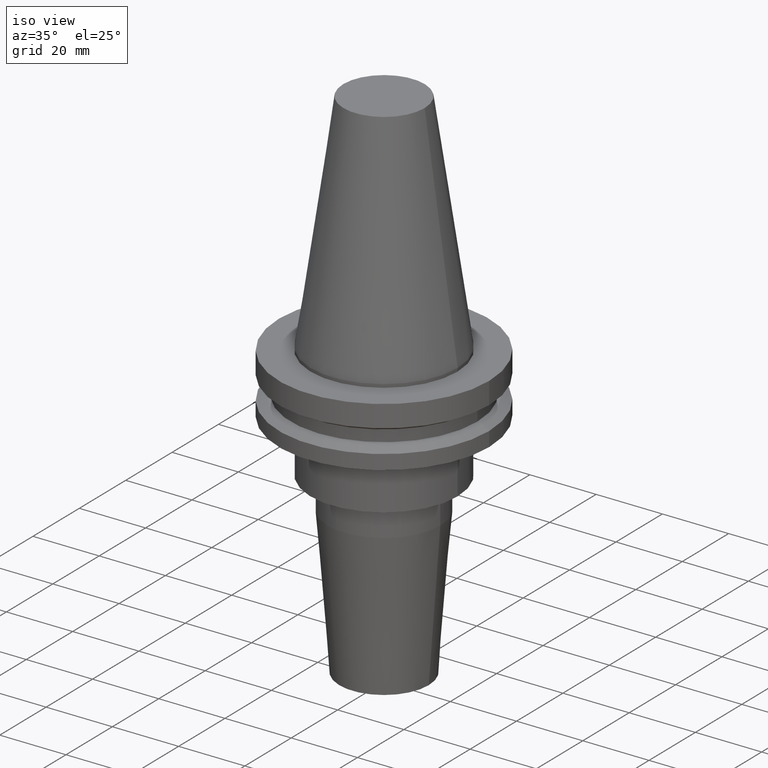
[diagram: clean part render]
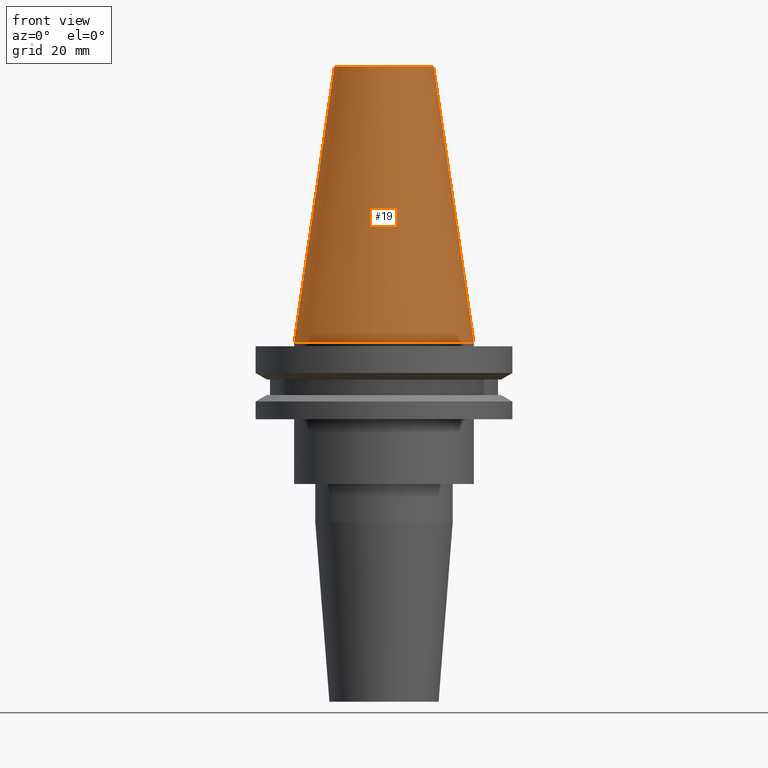
[diagram: tour spotlight — one face highlighted and labeled with its STEP entity id]
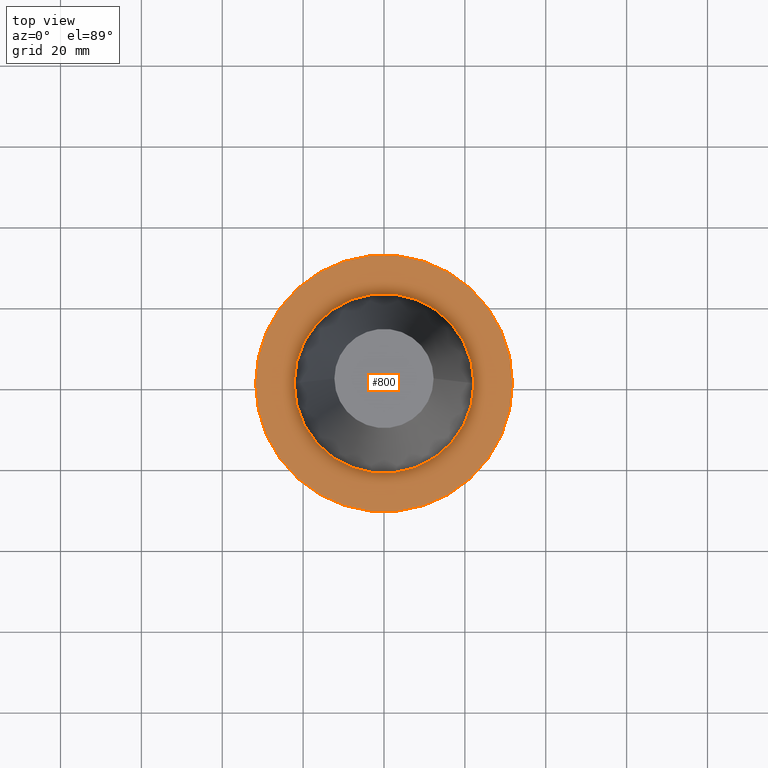
[diagram: tour spotlight — one face highlighted and labeled with its STEP entity id]
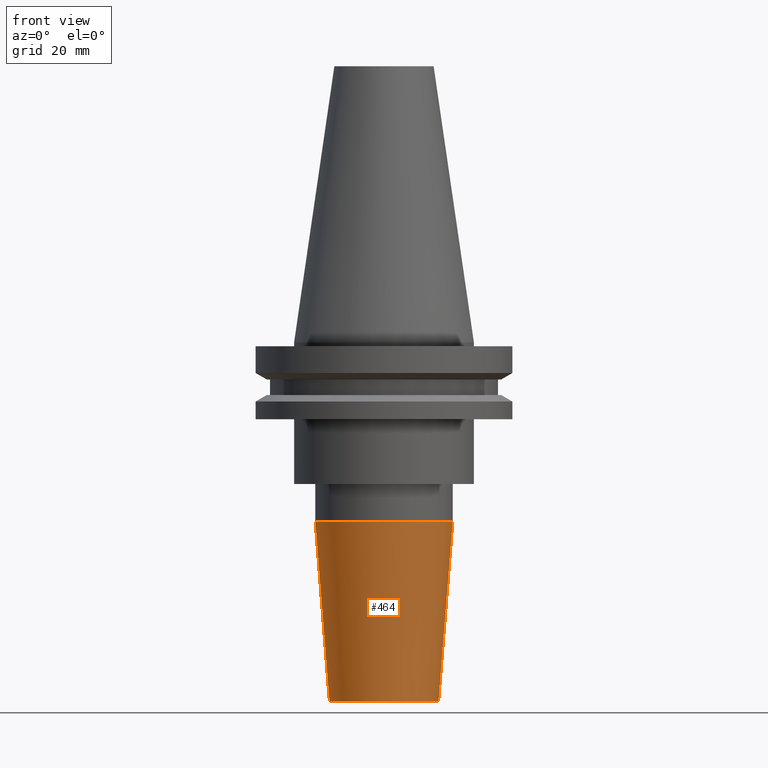
[diagram: tour spotlight — one face highlighted and labeled with its STEP entity id]
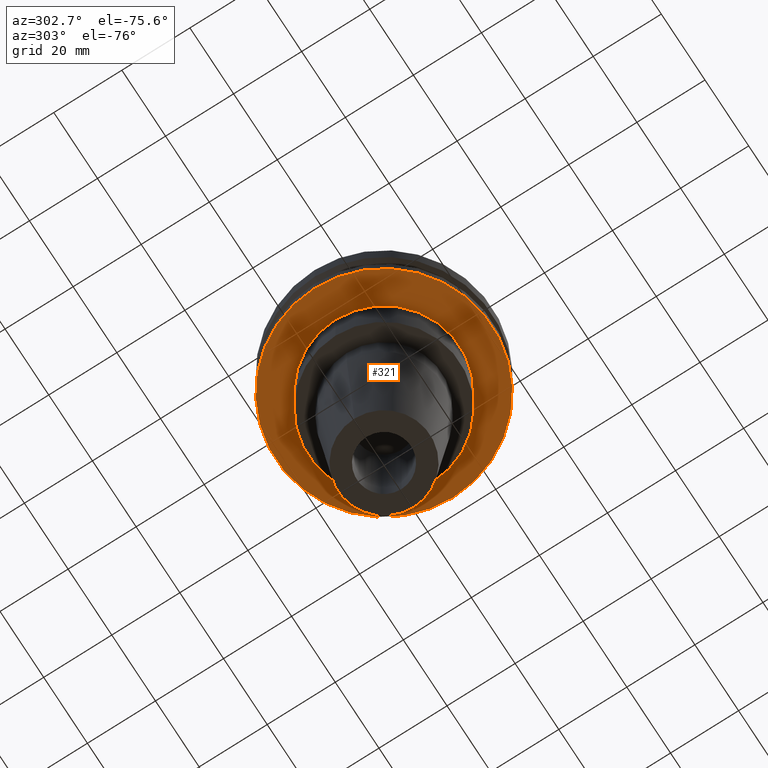
[diagram: tour spotlight — one face highlighted and labeled with its STEP entity id]
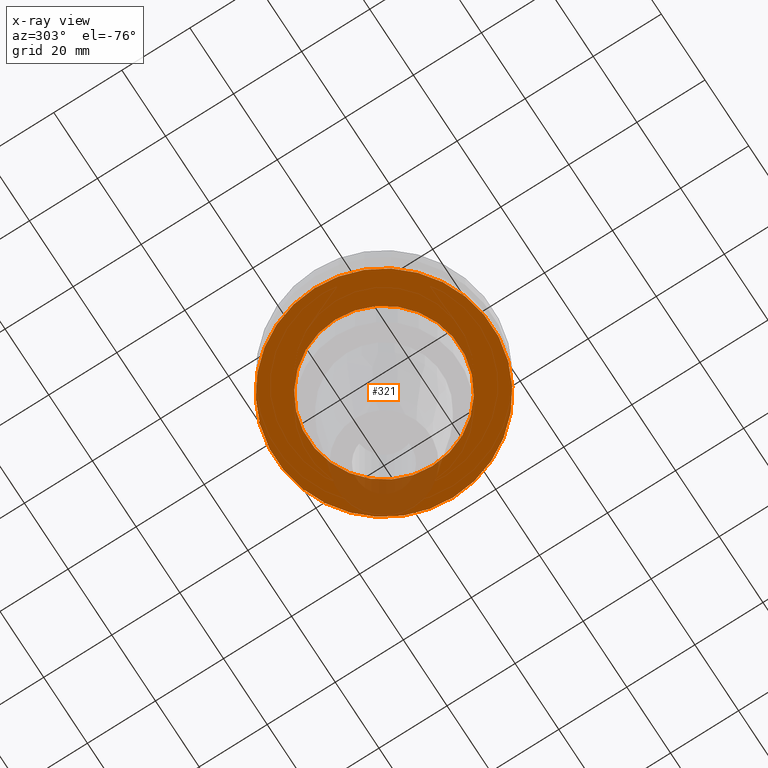
[diagram: x-ray of the same camera — body ghosted, this tour face saturated]
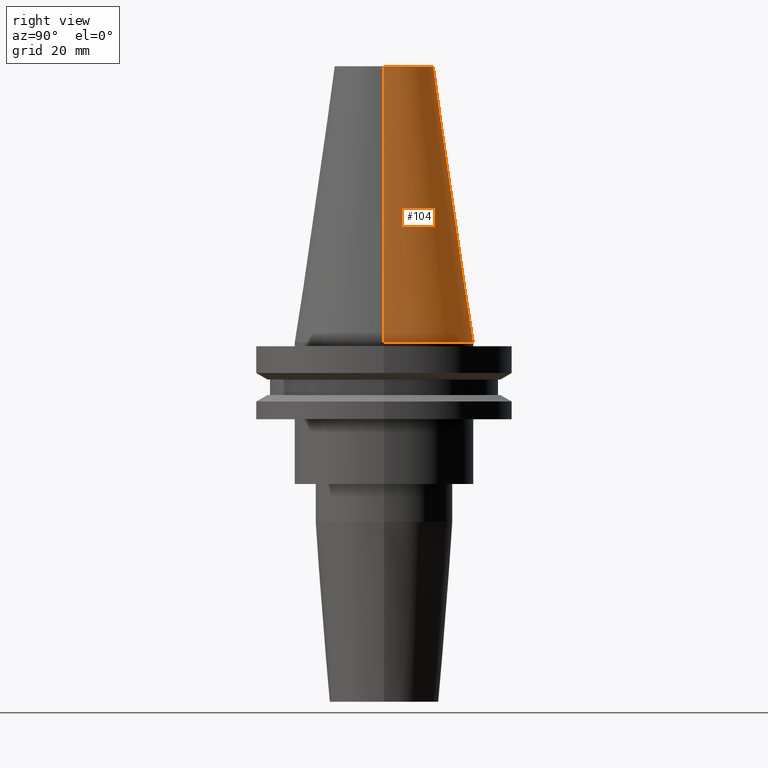
[diagram: tour spotlight — one face highlighted and labeled with its STEP entity id]
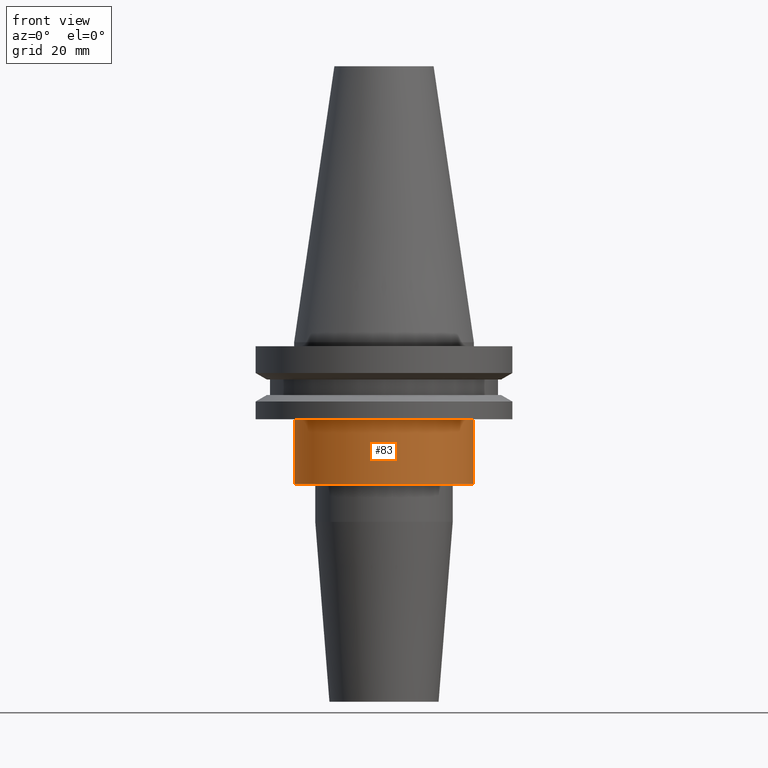
[diagram: tour spotlight — one face highlighted and labeled with its STEP entity id]
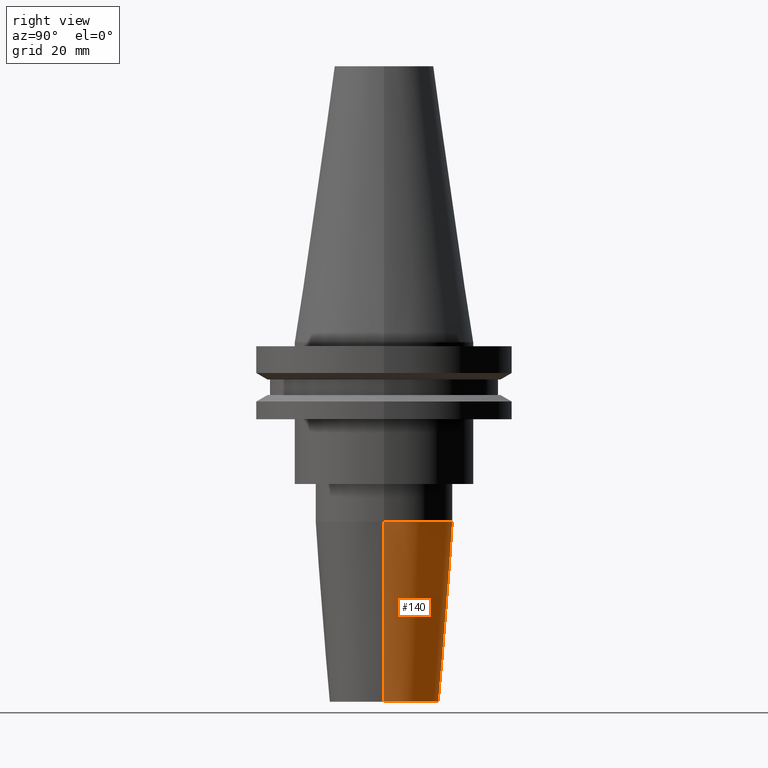
[diagram: tour spotlight — one face highlighted and labeled with its STEP entity id]
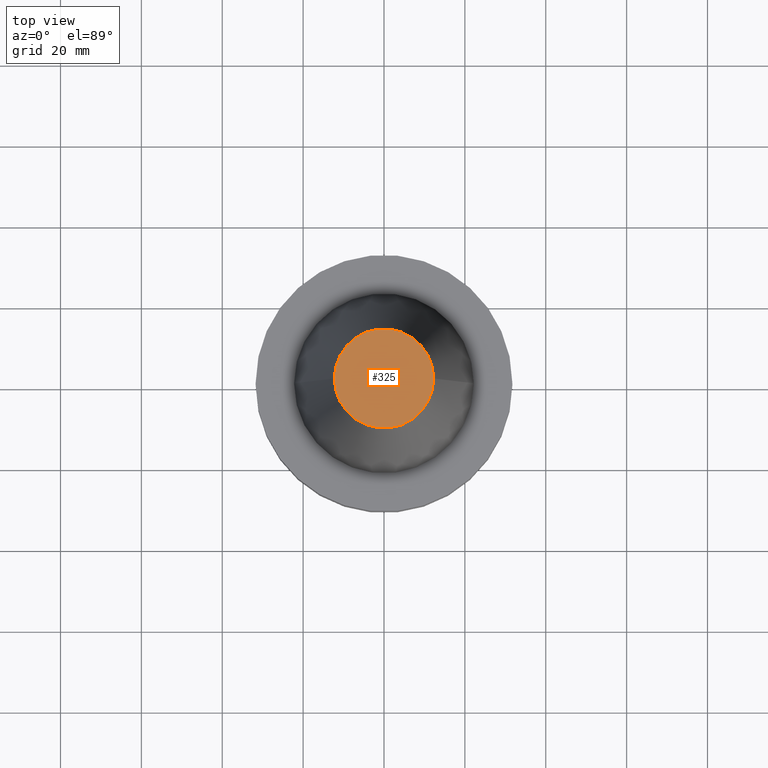
[diagram: tour spotlight — one face highlighted and labeled with its STEP entity id]
A machine part: a face-by-face anatomy tour. The part has 30 B-rep faces; the first image is the clean iso view, then the 8 largest visible faces are spotlighted one at a time (largest first), each with its STEP entity span.

Face 1 — front view, entity #19. In plain terms, the highlighted conical surface has half-angle 8.297 deg.
Definition (entity closure, byte-faithful):
#19 = ADVANCED_FACE ( 'NONE', ( #422 ), #143, .T. ) ;
#70 = CARTESIAN_POINT ( 'NONE',  ( 0.000000000000000000, 0.000000000000000000, 68.25000000000000000 ) ) ;
#78 = DIRECTION ( 'NONE',  ( -0.000000000000000000, -0.000000000000000000, 1.000000000000000000 ) ) ;
#101 = DIRECTION ( 'NONE',  ( 0.000000000000000000, 0.000000000000000000, -1.000000000000000000 ) ) ;
#118 = VERTEX_POINT ( 'NONE', #833 ) ;
#131 = CIRCLE ( 'NONE', #397, 12.27178102086201150 ) ;
#143 = CONICAL_SURFACE ( 'NONE', #299, 22.22500000000000142, 0.1448138465474119174 ) ;
#186 = CARTESIAN_POINT ( 'NONE',  ( 22.22500000000000142, 2.721777511104992849E-15, 0.000000000000000000 ) ) ;
#212 = EDGE_LOOP ( 'NONE', ( #544, #633, #372, #552 ) ) ;
#252 = DIRECTION ( 'NONE',  ( 0.1443082272672999711, 1.767266086135276757E-17, -0.9895327864921755756 ) ) ;
#264 = CARTESIAN_POINT ( 'NONE',  ( -22.22500000000000142, 0.000000000000000000, 0.000000000000000000 ) ) ;
#270 = DIRECTION ( 'NONE',  ( 1.000000000000000000, 0.000000000000000000, 0.000000000000000000 ) ) ;
#293 = CARTESIAN_POINT ( 'NONE',  ( 0.000000000000000000, 0.000000000000000000, 0.000000000000000000 ) ) ;
#299 = AXIS2_PLACEMENT_3D ( 'NONE', #435, #101, #764 ) ;
#302 = EDGE_CURVE ( 'NONE', #770, #118, #131, .T. ) ;
#357 = DIRECTION ( 'NONE',  ( 1.000000000000000000, 0.000000000000000000, 0.000000000000000000 ) ) ;
#372 = ORIENTED_EDGE ( 'NONE', *, *, #838, .T. ) ;
#382 = CARTESIAN_POINT ( 'NONE',  ( 22.22500000000000142, 2.721777511104992849E-15, 0.000000000000000000 ) ) ;
#396 = VECTOR ( 'NONE', #252, 999.9999999999998863 ) ;
#397 = AXIS2_PLACEMENT_3D ( 'NONE', #70, #78, #270 ) ;
#422 = FACE_OUTER_BOUND ( 'NONE', #212, .T. ) ;
#435 = CARTESIAN_POINT ( 'NONE',  ( 0.000000000000000000, 0.000000000000000000, 0.000000000000000000 ) ) ;
#438 = EDGE_CURVE ( 'NONE', #698, #677, #473, .T. ) ;
#473 = CIRCLE ( 'NONE', #514, 22.22500000000000142 ) ;
#514 = AXIS2_PLACEMENT_3D ( 'NONE', #293, #680, #357 ) ;
#544 = ORIENTED_EDGE ( 'NONE', *, *, #636, .F. ) ;
#552 = ORIENTED_EDGE ( 'NONE', *, *, #438, .T. ) ;
#633 = ORIENTED_EDGE ( 'NONE', *, *, #302, .F. ) ;
#636 = EDGE_CURVE ( 'NONE', #118, #677, #843, .T. ) ;
#677 = VERTEX_POINT ( 'NONE', #186 ) ;
#680 = DIRECTION ( 'NONE',  ( -0.000000000000000000, -0.000000000000000000, 1.000000000000000000 ) ) ;
#698 = VERTEX_POINT ( 'NONE', #789 ) ;
#732 = DIRECTION ( 'NONE',  ( -0.1443082272672999711, 0.000000000000000000, -0.9895327864921755756 ) ) ;
#764 = DIRECTION ( 'NONE',  ( -1.000000000000000000, 0.000000000000000000, 0.000000000000000000 ) ) ;
#770 = VERTEX_POINT ( 'NONE', #801 ) ;
#783 = VECTOR ( 'NONE', #732, 999.9999999999998863 ) ;
#789 = CARTESIAN_POINT ( 'NONE',  ( -22.22500000000000142, 0.000000000000000000, 0.000000000000000000 ) ) ;
#796 = LINE ( 'NONE', #264, #783 ) ;
#801 = CARTESIAN_POINT ( 'NONE',  ( -12.27178102086201150, 0.000000000000000000, 68.25000000000000000 ) ) ;
#833 = CARTESIAN_POINT ( 'NONE',  ( 12.27178102086201150, 2.112318622904291439E-15, 68.25000000000000000 ) ) ;
#838 = EDGE_CURVE ( 'NONE', #770, #698, #796, .T. ) ;
#843 = LINE ( 'NONE', #382, #396 ) ;

Face 2 — top view, entity #800. In plain terms, the highlighted planar face has unit normal (0, 0, -1).
Definition (entity closure, byte-faithful):
#7 = FACE_OUTER_BOUND ( 'NONE', #742, .T. ) ;
#25 = VERTEX_POINT ( 'NONE', #635 ) ;
#37 = CIRCLE ( 'NONE', #90, 22.22500000000000142 ) ;
#90 = AXIS2_PLACEMENT_3D ( 'NONE', #437, #446, #374 ) ;
#107 = ORIENTED_EDGE ( 'NONE', *, *, #683, .F. ) ;
#178 = ORIENTED_EDGE ( 'NONE', *, *, #262, .T. ) ;
#231 = CIRCLE ( 'NONE', #449, 31.75000000000000000 ) ;
#243 = AXIS2_PLACEMENT_3D ( 'NONE', #575, #315, #832 ) ;
#259 = DIRECTION ( 'NONE',  ( -0.000000000000000000, -0.000000000000000000, 1.000000000000000000 ) ) ;
#262 = EDGE_CURVE ( 'NONE', #568, #750, #231, .T. ) ;
#269 = PLANE ( 'NONE',  #755 ) ;
#272 = CARTESIAN_POINT ( 'NONE',  ( 0.000000000000000000, 31.75000000000000000, -0.9999999999999995559 ) ) ;
#273 = DIRECTION ( 'NONE',  ( -0.000000000000000000, -0.000000000000000000, 1.000000000000000000 ) ) ;
#311 = CIRCLE ( 'NONE', #821, 22.22500000000000142 ) ;
#315 = DIRECTION ( 'NONE',  ( -0.000000000000000000, -0.000000000000000000, 1.000000000000000000 ) ) ;
#318 = ORIENTED_EDGE ( 'NONE', *, *, #631, .T. ) ;
#343 = CARTESIAN_POINT ( 'NONE',  ( 31.75000000000000000, 0.000000000000000000, -1.000000000000000888 ) ) ;
#374 = DIRECTION ( 'NONE',  ( 1.000000000000000000, 0.000000000000000000, 0.000000000000000000 ) ) ;
#376 = VERTEX_POINT ( 'NONE', #413 ) ;
#378 = DIRECTION ( 'NONE',  ( 1.000000000000000000, 0.000000000000000000, 0.000000000000000000 ) ) ;
#413 = CARTESIAN_POINT ( 'NONE',  ( 22.22500000000000142, 0.000000000000000000, -1.000000000000000888 ) ) ;
#437 = CARTESIAN_POINT ( 'NONE',  ( 0.000000000000000000, 0.000000000000000000, -1.000000000000000888 ) ) ;
#446 = DIRECTION ( 'NONE',  ( -0.000000000000000000, -0.000000000000000000, 1.000000000000000000 ) ) ;
#449 = AXIS2_PLACEMENT_3D ( 'NONE', #468, #273, #802 ) ;
#468 = CARTESIAN_POINT ( 'NONE',  ( 0.000000000000000000, 0.000000000000000000, -1.000000000000000888 ) ) ;
#477 = EDGE_LOOP ( 'NONE', ( #107, #487 ) ) ;
#487 = ORIENTED_EDGE ( 'NONE', *, *, #654, .F. ) ;
#520 = DIRECTION ( 'NONE',  ( 0.000000000000000000, 0.000000000000000000, -1.000000000000000000 ) ) ;
#529 = DIRECTION ( 'NONE',  ( -1.000000000000000000, 0.000000000000000000, -0.000000000000000000 ) ) ;
#539 = CIRCLE ( 'NONE', #243, 31.75000000000000000 ) ;
#568 = VERTEX_POINT ( 'NONE', #634 ) ;
#575 = CARTESIAN_POINT ( 'NONE',  ( 0.000000000000000000, 0.000000000000000000, -1.000000000000000888 ) ) ;
#593 = FACE_BOUND ( 'NONE', #477, .T. ) ;
#631 = EDGE_CURVE ( 'NONE', #750, #568, #539, .T. ) ;
#634 = CARTESIAN_POINT ( 'NONE',  ( -31.75000000000000000, 3.888253587292846476E-15, -1.000000000000000888 ) ) ;
#635 = CARTESIAN_POINT ( 'NONE',  ( -22.22500000000000142, 2.721777511104992849E-15, -1.000000000000000888 ) ) ;
#650 = CARTESIAN_POINT ( 'NONE',  ( 0.000000000000000000, 0.000000000000000000, -1.000000000000000888 ) ) ;
#654 = EDGE_CURVE ( 'NONE', #25, #376, #37, .T. ) ;
#683 = EDGE_CURVE ( 'NONE', #376, #25, #311, .T. ) ;
#742 = EDGE_LOOP ( 'NONE', ( #318, #178 ) ) ;
#750 = VERTEX_POINT ( 'NONE', #343 ) ;
#755 = AXIS2_PLACEMENT_3D ( 'NONE', #272, #520, #529 ) ;
#800 = ADVANCED_FACE ( 'NONE', ( #593, #7 ), #269, .F. ) ;
#802 = DIRECTION ( 'NONE',  ( 1.000000000000000000, 0.000000000000000000, 0.000000000000000000 ) ) ;
#821 = AXIS2_PLACEMENT_3D ( 'NONE', #650, #259, #378 ) ;
#832 = DIRECTION ( 'NONE',  ( 1.000000000000000000, 0.000000000000000000, 0.000000000000000000 ) ) ;

Face 3 — front view, entity #464. In plain terms, the highlighted conical surface has half-angle 4.5 deg.
Definition (entity closure, byte-faithful):
#52 = VERTEX_POINT ( 'NONE', #830 ) ;
#75 = VECTOR ( 'NONE', #579, 1000.000000000000000 ) ;
#76 = DIRECTION ( 'NONE',  ( -0.000000000000000000, -0.000000000000000000, 1.000000000000000000 ) ) ;
#105 = AXIS2_PLACEMENT_3D ( 'NONE', #615, #169, #752 ) ;
#135 = CARTESIAN_POINT ( 'NONE',  ( 17.00000000000000000, 0.000000000000000000, -44.42828342338382441 ) ) ;
#169 = DIRECTION ( 'NONE',  ( -0.000000000000000000, -0.000000000000000000, 1.000000000000000000 ) ) ;
#183 = LINE ( 'NONE', #256, #571 ) ;
#209 = EDGE_CURVE ( 'NONE', #430, #740, #183, .T. ) ;
#254 = ORIENTED_EDGE ( 'NONE', *, *, #577, .F. ) ;
#256 = CARTESIAN_POINT ( 'NONE',  ( 13.50000000000000000, 0.000000000000000000, -88.89999999999999147 ) ) ;
#327 = CIRCLE ( 'NONE', #834, 13.50000000000000000 ) ;
#391 = EDGE_CURVE ( 'NONE', #52, #430, #327, .T. ) ;
#392 = DIRECTION ( 'NONE',  ( 0.07845909572783674180, 0.000000000000000000, 0.9969173337331286300 ) ) ;
#420 = VERTEX_POINT ( 'NONE', #623 ) ;
#430 = VERTEX_POINT ( 'NONE', #547 ) ;
#447 = CONICAL_SURFACE ( 'NONE', #105, 13.50000000000000000, 0.07853981633973659837 ) ;
#459 = DIRECTION ( 'NONE',  ( 1.000000000000000000, 0.000000000000000000, 0.000000000000000000 ) ) ;
#464 = ADVANCED_FACE ( 'NONE', ( #486 ), #447, .T. ) ;
#466 = CARTESIAN_POINT ( 'NONE',  ( 0.000000000000000000, 0.000000000000000000, -88.89999999999999147 ) ) ;
#486 = FACE_OUTER_BOUND ( 'NONE', #578, .T. ) ;
#527 = CARTESIAN_POINT ( 'NONE',  ( 0.000000000000000000, 0.000000000000000000, -44.42828342338382441 ) ) ;
#547 = CARTESIAN_POINT ( 'NONE',  ( 13.50000000000000000, 0.000000000000000000, -88.89999999999999147 ) ) ;
#548 = ORIENTED_EDGE ( 'NONE', *, *, #391, .T. ) ;
#558 = ORIENTED_EDGE ( 'NONE', *, *, #209, .T. ) ;
#562 = DIRECTION ( 'NONE',  ( 1.000000000000000000, 0.000000000000000000, 0.000000000000000000 ) ) ;
#571 = VECTOR ( 'NONE', #392, 1000.000000000000000 ) ;
#577 = EDGE_CURVE ( 'NONE', #52, #420, #775, .T. ) ;
#578 = EDGE_LOOP ( 'NONE', ( #254, #548, #558, #842 ) ) ;
#579 = DIRECTION ( 'NONE',  ( -0.07845909572783674180, 9.608468044709104308E-18, 0.9969173337331286300 ) ) ;
#615 = CARTESIAN_POINT ( 'NONE',  ( 0.000000000000000000, 0.000000000000000000, -88.89999999999999147 ) ) ;
#623 = CARTESIAN_POINT ( 'NONE',  ( -17.00000000000000000, 2.081899558550500280E-15, -44.42828342338382441 ) ) ;
#697 = CIRCLE ( 'NONE', #727, 17.00000000000000000 ) ;
#710 = CARTESIAN_POINT ( 'NONE',  ( -13.50000000000000000, 1.653273178848926867E-15, -88.89999999999999147 ) ) ;
#727 = AXIS2_PLACEMENT_3D ( 'NONE', #527, #76, #459 ) ;
#733 = DIRECTION ( 'NONE',  ( -0.000000000000000000, -0.000000000000000000, 1.000000000000000000 ) ) ;
#734 = EDGE_CURVE ( 'NONE', #420, #740, #697, .T. ) ;
#740 = VERTEX_POINT ( 'NONE', #135 ) ;
#752 = DIRECTION ( 'NONE',  ( 1.000000000000000000, 0.000000000000000000, 0.000000000000000000 ) ) ;
#775 = LINE ( 'NONE', #710, #75 ) ;
#830 = CARTESIAN_POINT ( 'NONE',  ( -13.50000000000000000, 1.867586368699713770E-15, -88.89999999999999147 ) ) ;
#834 = AXIS2_PLACEMENT_3D ( 'NONE', #466, #733, #562 ) ;
#842 = ORIENTED_EDGE ( 'NONE', *, *, #734, .F. ) ;

Face 4 — auxiliary view, entity #321. An x-ray twin of the same camera follows (body ghosted, this face saturated) — the face is partly hidden behind the body. In plain terms, the highlighted planar face has unit normal (0, -0, 1).
Definition (entity closure, byte-faithful):
#6 = AXIS2_PLACEMENT_3D ( 'NONE', #642, #108, #193 ) ;
#8 = AXIS2_PLACEMENT_3D ( 'NONE', #260, #395, #518 ) ;
#72 = DIRECTION ( 'NONE',  ( -0.000000000000000000, -0.000000000000000000, 1.000000000000000000 ) ) ;
#77 = AXIS2_PLACEMENT_3D ( 'NONE', #82, #72, #534 ) ;
#82 = CARTESIAN_POINT ( 'NONE',  ( 0.000000000000000000, 0.000000000000000000, -19.04999999999999716 ) ) ;
#89 = VERTEX_POINT ( 'NONE', #644 ) ;
#108 = DIRECTION ( 'NONE',  ( -0.000000000000000000, -0.000000000000000000, 1.000000000000000000 ) ) ;
#144 = FACE_OUTER_BOUND ( 'NONE', #322, .T. ) ;
#154 = CARTESIAN_POINT ( 'NONE',  ( -22.22500000000000142, 2.721777511104992849E-15, -19.04999999999999716 ) ) ;
#193 = DIRECTION ( 'NONE',  ( 1.000000000000000000, 0.000000000000000000, 0.000000000000000000 ) ) ;
#201 = DIRECTION ( 'NONE',  ( 1.000000000000000000, 0.000000000000000000, 0.000000000000000000 ) ) ;
#206 = DIRECTION ( 'NONE',  ( 1.000000000000000000, 0.000000000000000000, 0.000000000000000000 ) ) ;
#226 = EDGE_CURVE ( 'NONE', #89, #258, #684, .T. ) ;
#258 = VERTEX_POINT ( 'NONE', #405 ) ;
#260 = CARTESIAN_POINT ( 'NONE',  ( 0.000000000000000000, 0.000000000000000000, -19.04999999999999716 ) ) ;
#321 = ADVANCED_FACE ( 'NONE', ( #144, #793 ), #460, .F. ) ;
#322 = EDGE_LOOP ( 'NONE', ( #653, #778 ) ) ;
#395 = DIRECTION ( 'NONE',  ( -0.000000000000000000, -0.000000000000000000, 1.000000000000000000 ) ) ;
#405 = CARTESIAN_POINT ( 'NONE',  ( 31.74999999999999289, 0.000000000000000000, -19.04999999999999716 ) ) ;
#406 = VERTEX_POINT ( 'NONE', #154 ) ;
#436 = ORIENTED_EDGE ( 'NONE', *, *, #645, .T. ) ;
#455 = CARTESIAN_POINT ( 'NONE',  ( 0.000000000000000000, 0.000000000000000000, -19.04999999999999716 ) ) ;
#460 = PLANE ( 'NONE',  #839 ) ;
#467 = DIRECTION ( 'NONE',  ( -0.000000000000000000, -0.000000000000000000, 1.000000000000000000 ) ) ;
#499 = EDGE_LOOP ( 'NONE', ( #436, #604 ) ) ;
#518 = DIRECTION ( 'NONE',  ( 1.000000000000000000, 0.000000000000000000, 0.000000000000000000 ) ) ;
#534 = DIRECTION ( 'NONE',  ( 1.000000000000000000, 0.000000000000000000, 0.000000000000000000 ) ) ;
#554 = AXIS2_PLACEMENT_3D ( 'NONE', #455, #467, #206 ) ;
#594 = DIRECTION ( 'NONE',  ( 0.000000000000000000, -0.000000000000000000, 1.000000000000000000 ) ) ;
#598 = CARTESIAN_POINT ( 'NONE',  ( 0.000000000000000000, 31.74999999999999289, -19.04999999999999716 ) ) ;
#604 = ORIENTED_EDGE ( 'NONE', *, *, #745, .T. ) ;
#642 = CARTESIAN_POINT ( 'NONE',  ( 0.000000000000000000, 0.000000000000000000, -19.04999999999999716 ) ) ;
#644 = CARTESIAN_POINT ( 'NONE',  ( -31.74999999999999289, 3.888253587292845687E-15, -19.04999999999999716 ) ) ;
#645 = EDGE_CURVE ( 'NONE', #761, #406, #725, .T. ) ;
#653 = ORIENTED_EDGE ( 'NONE', *, *, #747, .F. ) ;
#663 = CARTESIAN_POINT ( 'NONE',  ( 22.22500000000000142, 0.000000000000000000, -19.04999999999999716 ) ) ;
#684 = CIRCLE ( 'NONE', #8, 31.74999999999999289 ) ;
#725 = CIRCLE ( 'NONE', #6, 22.22500000000000142 ) ;
#745 = EDGE_CURVE ( 'NONE', #406, #761, #823, .T. ) ;
#747 = EDGE_CURVE ( 'NONE', #258, #89, #797, .T. ) ;
#761 = VERTEX_POINT ( 'NONE', #663 ) ;
#778 = ORIENTED_EDGE ( 'NONE', *, *, #226, .F. ) ;
#793 = FACE_BOUND ( 'NONE', #499, .T. ) ;
#797 = CIRCLE ( 'NONE', #554, 31.74999999999999289 ) ;
#823 = CIRCLE ( 'NONE', #77, 22.22500000000000142 ) ;
#839 = AXIS2_PLACEMENT_3D ( 'NONE', #598, #594, #201 ) ;

Face 5 — right view, entity #104. In plain terms, the highlighted conical surface has half-angle 8.297 deg.
Definition (entity closure, byte-faithful):
#11 = DIRECTION ( 'NONE',  ( 1.000000000000000000, 0.000000000000000000, 0.000000000000000000 ) ) ;
#45 = EDGE_LOOP ( 'NONE', ( #129, #79, #440, #125 ) ) ;
#79 = ORIENTED_EDGE ( 'NONE', *, *, #636, .T. ) ;
#104 = ADVANCED_FACE ( 'NONE', ( #777 ), #741, .T. ) ;
#118 = VERTEX_POINT ( 'NONE', #833 ) ;
#125 = ORIENTED_EDGE ( 'NONE', *, *, #838, .F. ) ;
#129 = ORIENTED_EDGE ( 'NONE', *, *, #719, .F. ) ;
#138 = CARTESIAN_POINT ( 'NONE',  ( 0.000000000000000000, 0.000000000000000000, 0.000000000000000000 ) ) ;
#186 = CARTESIAN_POINT ( 'NONE',  ( 22.22500000000000142, 2.721777511104992849E-15, 0.000000000000000000 ) ) ;
#194 = DIRECTION ( 'NONE',  ( -1.000000000000000000, 0.000000000000000000, 0.000000000000000000 ) ) ;
#252 = DIRECTION ( 'NONE',  ( 0.1443082272672999711, 1.767266086135276757E-17, -0.9895327864921755756 ) ) ;
#264 = CARTESIAN_POINT ( 'NONE',  ( -22.22500000000000142, 0.000000000000000000, 0.000000000000000000 ) ) ;
#266 = CARTESIAN_POINT ( 'NONE',  ( 0.000000000000000000, 0.000000000000000000, 68.25000000000000000 ) ) ;
#347 = EDGE_CURVE ( 'NONE', #677, #698, #503, .T. ) ;
#382 = CARTESIAN_POINT ( 'NONE',  ( 22.22500000000000142, 2.721777511104992849E-15, 0.000000000000000000 ) ) ;
#396 = VECTOR ( 'NONE', #252, 999.9999999999998863 ) ;
#440 = ORIENTED_EDGE ( 'NONE', *, *, #347, .T. ) ;
#465 = DIRECTION ( 'NONE',  ( 1.000000000000000000, 0.000000000000000000, 0.000000000000000000 ) ) ;
#503 = CIRCLE ( 'NONE', #612, 22.22500000000000142 ) ;
#612 = AXIS2_PLACEMENT_3D ( 'NONE', #138, #671, #11 ) ;
#625 = CIRCLE ( 'NONE', #667, 12.27178102086201150 ) ;
#636 = EDGE_CURVE ( 'NONE', #118, #677, #843, .T. ) ;
#648 = DIRECTION ( 'NONE',  ( 0.000000000000000000, 0.000000000000000000, -1.000000000000000000 ) ) ;
#656 = DIRECTION ( 'NONE',  ( -0.000000000000000000, -0.000000000000000000, 1.000000000000000000 ) ) ;
#667 = AXIS2_PLACEMENT_3D ( 'NONE', #266, #656, #465 ) ;
#671 = DIRECTION ( 'NONE',  ( -0.000000000000000000, -0.000000000000000000, 1.000000000000000000 ) ) ;
#677 = VERTEX_POINT ( 'NONE', #186 ) ;
#698 = VERTEX_POINT ( 'NONE', #789 ) ;
#719 = EDGE_CURVE ( 'NONE', #118, #770, #625, .T. ) ;
#732 = DIRECTION ( 'NONE',  ( -0.1443082272672999711, 0.000000000000000000, -0.9895327864921755756 ) ) ;
#741 = CONICAL_SURFACE ( 'NONE', #811, 22.22500000000000142, 0.1448138465474119174 ) ;
#770 = VERTEX_POINT ( 'NONE', #801 ) ;
#777 = FACE_OUTER_BOUND ( 'NONE', #45, .T. ) ;
#783 = VECTOR ( 'NONE', #732, 999.9999999999998863 ) ;
#789 = CARTESIAN_POINT ( 'NONE',  ( -22.22500000000000142, 0.000000000000000000, 0.000000000000000000 ) ) ;
#790 = CARTESIAN_POINT ( 'NONE',  ( 0.000000000000000000, 0.000000000000000000, 0.000000000000000000 ) ) ;
#796 = LINE ( 'NONE', #264, #783 ) ;
#801 = CARTESIAN_POINT ( 'NONE',  ( -12.27178102086201150, 0.000000000000000000, 68.25000000000000000 ) ) ;
#811 = AXIS2_PLACEMENT_3D ( 'NONE', #790, #648, #194 ) ;
#833 = CARTESIAN_POINT ( 'NONE',  ( 12.27178102086201150, 2.112318622904291439E-15, 68.25000000000000000 ) ) ;
#838 = EDGE_CURVE ( 'NONE', #770, #698, #796, .T. ) ;
#843 = LINE ( 'NONE', #382, #396 ) ;

Face 6 — front view, entity #83. In plain terms, the highlighted cylindrical surface (partial cylindrical patch) has radius 22.225 mm, axis along (-0, -0, 1).
Definition (entity closure, byte-faithful):
#62 = DIRECTION ( 'NONE',  ( 1.000000000000000000, 0.000000000000000000, 0.000000000000000000 ) ) ;
#64 = ORIENTED_EDGE ( 'NONE', *, *, #745, .F. ) ;
#72 = DIRECTION ( 'NONE',  ( -0.000000000000000000, -0.000000000000000000, 1.000000000000000000 ) ) ;
#77 = AXIS2_PLACEMENT_3D ( 'NONE', #82, #72, #534 ) ;
#82 = CARTESIAN_POINT ( 'NONE',  ( 0.000000000000000000, 0.000000000000000000, -19.04999999999999716 ) ) ;
#83 = ADVANCED_FACE ( 'NONE', ( #427 ), #493, .T. ) ;
#96 = CARTESIAN_POINT ( 'NONE',  ( 22.22499999999999787, 0.000000000000000000, -35.04999999999999716 ) ) ;
#121 = CARTESIAN_POINT ( 'NONE',  ( -22.22499999999999787, 2.721777511104992454E-15, -35.04999999999999716 ) ) ;
#122 = VERTEX_POINT ( 'NONE', #121 ) ;
#124 = DIRECTION ( 'NONE',  ( 1.000000000000000000, 0.000000000000000000, 0.000000000000000000 ) ) ;
#133 = EDGE_CURVE ( 'NONE', #122, #532, #824, .T. ) ;
#154 = CARTESIAN_POINT ( 'NONE',  ( -22.22500000000000142, 2.721777511104992849E-15, -19.04999999999999716 ) ) ;
#175 = DIRECTION ( 'NONE',  ( -0.000000000000000000, -0.000000000000000000, 1.000000000000000000 ) ) ;
#197 = CARTESIAN_POINT ( 'NONE',  ( 0.000000000000000000, 0.000000000000000000, -35.04999999999999716 ) ) ;
#218 = ORIENTED_EDGE ( 'NONE', *, *, #550, .F. ) ;
#248 = CARTESIAN_POINT ( 'NONE',  ( 22.22500000000000142, 0.000000000000000000, 68.25000000000000000 ) ) ;
#316 = DIRECTION ( 'NONE',  ( -0.000000000000000000, -0.000000000000000000, 1.000000000000000000 ) ) ;
#319 = DIRECTION ( 'NONE',  ( -0.000000000000000000, -0.000000000000000000, 1.000000000000000000 ) ) ;
#324 = LINE ( 'NONE', #248, #352 ) ;
#337 = VECTOR ( 'NONE', #840, 1000.000000000000000 ) ;
#352 = VECTOR ( 'NONE', #319, 1000.000000000000000 ) ;
#385 = AXIS2_PLACEMENT_3D ( 'NONE', #197, #316, #124 ) ;
#406 = VERTEX_POINT ( 'NONE', #154 ) ;
#427 = FACE_OUTER_BOUND ( 'NONE', #601, .T. ) ;
#462 = AXIS2_PLACEMENT_3D ( 'NONE', #768, #175, #62 ) ;
#493 = CYLINDRICAL_SURFACE ( 'NONE', #462, 22.22500000000000142 ) ;
#532 = VERTEX_POINT ( 'NONE', #96 ) ;
#534 = DIRECTION ( 'NONE',  ( 1.000000000000000000, 0.000000000000000000, 0.000000000000000000 ) ) ;
#550 = EDGE_CURVE ( 'NONE', #122, #406, #703, .T. ) ;
#566 = CARTESIAN_POINT ( 'NONE',  ( -22.22500000000000142, 2.721777511104992849E-15, 68.25000000000000000 ) ) ;
#581 = ORIENTED_EDGE ( 'NONE', *, *, #658, .T. ) ;
#601 = EDGE_LOOP ( 'NONE', ( #218, #828, #581, #64 ) ) ;
#658 = EDGE_CURVE ( 'NONE', #532, #761, #324, .T. ) ;
#663 = CARTESIAN_POINT ( 'NONE',  ( 22.22500000000000142, 0.000000000000000000, -19.04999999999999716 ) ) ;
#703 = LINE ( 'NONE', #566, #337 ) ;
#745 = EDGE_CURVE ( 'NONE', #406, #761, #823, .T. ) ;
#761 = VERTEX_POINT ( 'NONE', #663 ) ;
#768 = CARTESIAN_POINT ( 'NONE',  ( 0.000000000000000000, 0.000000000000000000, 68.25000000000000000 ) ) ;
#823 = CIRCLE ( 'NONE', #77, 22.22500000000000142 ) ;
#824 = CIRCLE ( 'NONE', #385, 22.22499999999999787 ) ;
#828 = ORIENTED_EDGE ( 'NONE', *, *, #133, .T. ) ;
#840 = DIRECTION ( 'NONE',  ( -0.000000000000000000, -0.000000000000000000, 1.000000000000000000 ) ) ;

Face 7 — right view, entity #140. In plain terms, the highlighted conical surface has half-angle 4.5 deg.
Definition (entity closure, byte-faithful):
#32 = CARTESIAN_POINT ( 'NONE',  ( 0.000000000000000000, 0.000000000000000000, -88.89999999999999147 ) ) ;
#39 = CONICAL_SURFACE ( 'NONE', #556, 13.50000000000000000, 0.07853981633973659837 ) ;
#52 = VERTEX_POINT ( 'NONE', #830 ) ;
#73 = CARTESIAN_POINT ( 'NONE',  ( 0.000000000000000000, 0.000000000000000000, -44.42828342338382441 ) ) ;
#75 = VECTOR ( 'NONE', #579, 1000.000000000000000 ) ;
#94 = AXIS2_PLACEMENT_3D ( 'NONE', #73, #736, #528 ) ;
#109 = ORIENTED_EDGE ( 'NONE', *, *, #549, .T. ) ;
#135 = CARTESIAN_POINT ( 'NONE',  ( 17.00000000000000000, 0.000000000000000000, -44.42828342338382441 ) ) ;
#140 = ADVANCED_FACE ( 'NONE', ( #639 ), #39, .T. ) ;
#174 = DIRECTION ( 'NONE',  ( 1.000000000000000000, 0.000000000000000000, 0.000000000000000000 ) ) ;
#180 = CARTESIAN_POINT ( 'NONE',  ( 0.000000000000000000, 0.000000000000000000, -88.89999999999999147 ) ) ;
#183 = LINE ( 'NONE', #256, #571 ) ;
#209 = EDGE_CURVE ( 'NONE', #430, #740, #183, .T. ) ;
#249 = DIRECTION ( 'NONE',  ( 1.000000000000000000, 0.000000000000000000, 0.000000000000000000 ) ) ;
#251 = EDGE_LOOP ( 'NONE', ( #109, #606, #301, #286 ) ) ;
#256 = CARTESIAN_POINT ( 'NONE',  ( 13.50000000000000000, 0.000000000000000000, -88.89999999999999147 ) ) ;
#286 = ORIENTED_EDGE ( 'NONE', *, *, #209, .F. ) ;
#301 = ORIENTED_EDGE ( 'NONE', *, *, #323, .F. ) ;
#323 = EDGE_CURVE ( 'NONE', #740, #420, #463, .T. ) ;
#392 = DIRECTION ( 'NONE',  ( 0.07845909572783674180, 0.000000000000000000, 0.9969173337331286300 ) ) ;
#420 = VERTEX_POINT ( 'NONE', #623 ) ;
#430 = VERTEX_POINT ( 'NONE', #547 ) ;
#432 = CIRCLE ( 'NONE', #526, 13.50000000000000000 ) ;
#463 = CIRCLE ( 'NONE', #94, 17.00000000000000000 ) ;
#495 = DIRECTION ( 'NONE',  ( -0.000000000000000000, -0.000000000000000000, 1.000000000000000000 ) ) ;
#504 = DIRECTION ( 'NONE',  ( -0.000000000000000000, -0.000000000000000000, 1.000000000000000000 ) ) ;
#526 = AXIS2_PLACEMENT_3D ( 'NONE', #32, #495, #174 ) ;
#528 = DIRECTION ( 'NONE',  ( 1.000000000000000000, 0.000000000000000000, 0.000000000000000000 ) ) ;
#547 = CARTESIAN_POINT ( 'NONE',  ( 13.50000000000000000, 0.000000000000000000, -88.89999999999999147 ) ) ;
#549 = EDGE_CURVE ( 'NONE', #430, #52, #432, .T. ) ;
#556 = AXIS2_PLACEMENT_3D ( 'NONE', #180, #504, #249 ) ;
#571 = VECTOR ( 'NONE', #392, 1000.000000000000000 ) ;
#577 = EDGE_CURVE ( 'NONE', #52, #420, #775, .T. ) ;
#579 = DIRECTION ( 'NONE',  ( -0.07845909572783674180, 9.608468044709104308E-18, 0.9969173337331286300 ) ) ;
#606 = ORIENTED_EDGE ( 'NONE', *, *, #577, .T. ) ;
#623 = CARTESIAN_POINT ( 'NONE',  ( -17.00000000000000000, 2.081899558550500280E-15, -44.42828342338382441 ) ) ;
#639 = FACE_OUTER_BOUND ( 'NONE', #251, .T. ) ;
#710 = CARTESIAN_POINT ( 'NONE',  ( -13.50000000000000000, 1.653273178848926867E-15, -88.89999999999999147 ) ) ;
#736 = DIRECTION ( 'NONE',  ( -0.000000000000000000, -0.000000000000000000, 1.000000000000000000 ) ) ;
#740 = VERTEX_POINT ( 'NONE', #135 ) ;
#775 = LINE ( 'NONE', #710, #75 ) ;
#830 = CARTESIAN_POINT ( 'NONE',  ( -13.50000000000000000, 1.867586368699713770E-15, -88.89999999999999147 ) ) ;

Face 8 — top view, entity #325. In plain terms, the highlighted planar face has unit normal (0, 0, -1).
Definition (entity closure, byte-faithful):
#4 = DIRECTION ( 'NONE',  ( -1.000000000000000000, 0.000000000000000000, -0.000000000000000000 ) ) ;
#70 = CARTESIAN_POINT ( 'NONE',  ( 0.000000000000000000, 0.000000000000000000, 68.25000000000000000 ) ) ;
#78 = DIRECTION ( 'NONE',  ( -0.000000000000000000, -0.000000000000000000, 1.000000000000000000 ) ) ;
#98 = ORIENTED_EDGE ( 'NONE', *, *, #302, .T. ) ;
#118 = VERTEX_POINT ( 'NONE', #833 ) ;
#131 = CIRCLE ( 'NONE', #397, 12.27178102086201150 ) ;
#132 = FACE_OUTER_BOUND ( 'NONE', #559, .T. ) ;
#266 = CARTESIAN_POINT ( 'NONE',  ( 0.000000000000000000, 0.000000000000000000, 68.25000000000000000 ) ) ;
#270 = DIRECTION ( 'NONE',  ( 1.000000000000000000, 0.000000000000000000, 0.000000000000000000 ) ) ;
#302 = EDGE_CURVE ( 'NONE', #770, #118, #131, .T. ) ;
#325 = ADVANCED_FACE ( 'NONE', ( #132 ), #335, .F. ) ;
#335 = PLANE ( 'NONE',  #572 ) ;
#397 = AXIS2_PLACEMENT_3D ( 'NONE', #70, #78, #270 ) ;
#465 = DIRECTION ( 'NONE',  ( 1.000000000000000000, 0.000000000000000000, 0.000000000000000000 ) ) ;
#481 = ORIENTED_EDGE ( 'NONE', *, *, #719, .T. ) ;
#525 = CARTESIAN_POINT ( 'NONE',  ( 0.000000000000000000, 12.27178102086201150, 68.25000000000000000 ) ) ;
#559 = EDGE_LOOP ( 'NONE', ( #98, #481 ) ) ;
#572 = AXIS2_PLACEMENT_3D ( 'NONE', #525, #675, #4 ) ;
#625 = CIRCLE ( 'NONE', #667, 12.27178102086201150 ) ;
#656 = DIRECTION ( 'NONE',  ( -0.000000000000000000, -0.000000000000000000, 1.000000000000000000 ) ) ;
#667 = AXIS2_PLACEMENT_3D ( 'NONE', #266, #656, #465 ) ;
#675 = DIRECTION ( 'NONE',  ( 0.000000000000000000, 0.000000000000000000, -1.000000000000000000 ) ) ;
#719 = EDGE_CURVE ( 'NONE', #118, #770, #625, .T. ) ;
#770 = VERTEX_POINT ( 'NONE', #801 ) ;
#801 = CARTESIAN_POINT ( 'NONE',  ( -12.27178102086201150, 0.000000000000000000, 68.25000000000000000 ) ) ;
#833 = CARTESIAN_POINT ( 'NONE',  ( 12.27178102086201150, 2.112318622904291439E-15, 68.25000000000000000 ) ) ;